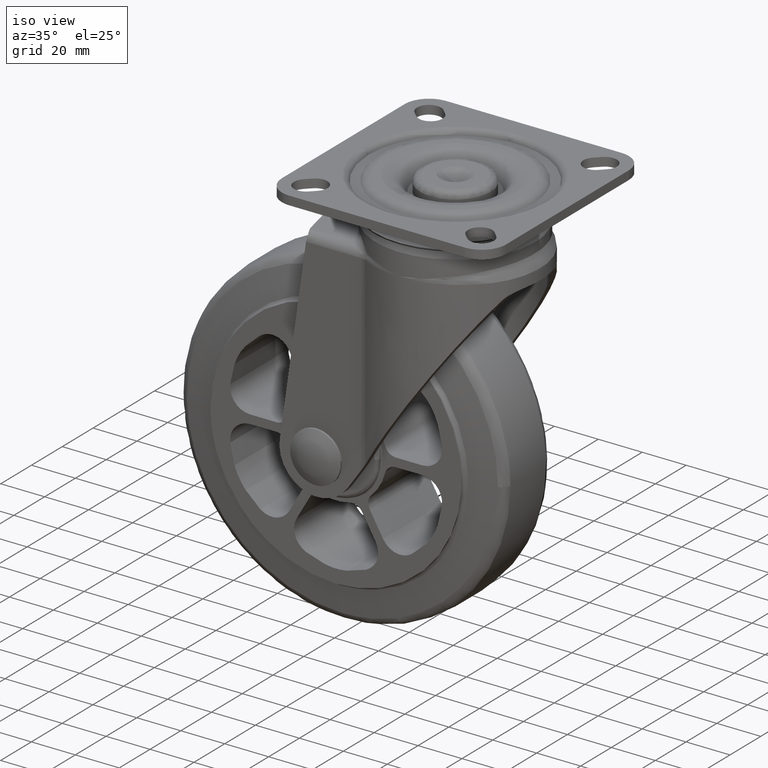
[diagram: clean part render]
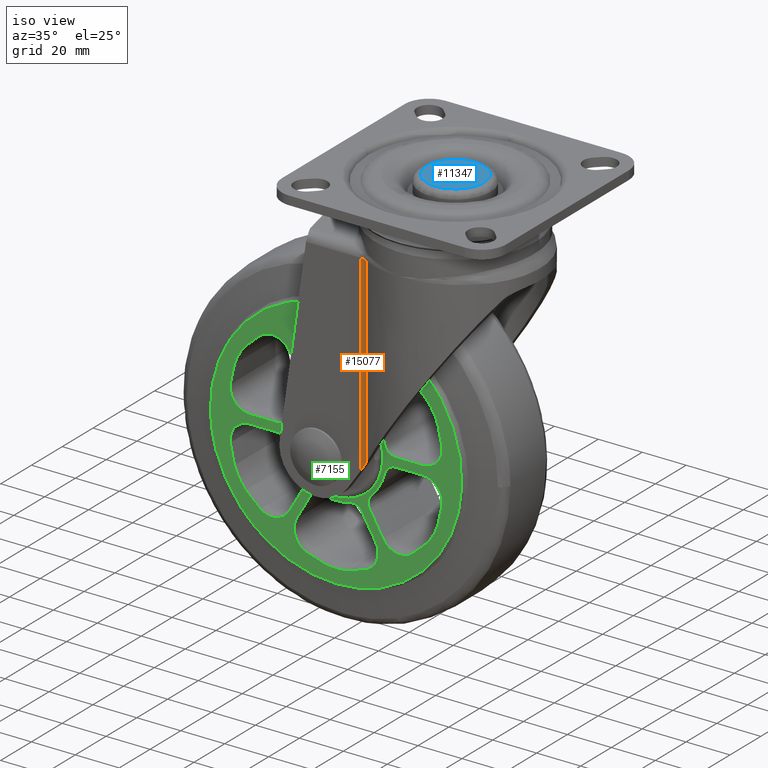
[diagram: same view with three faces highlighted in distinct colors, each labeled with its STEP entity id]
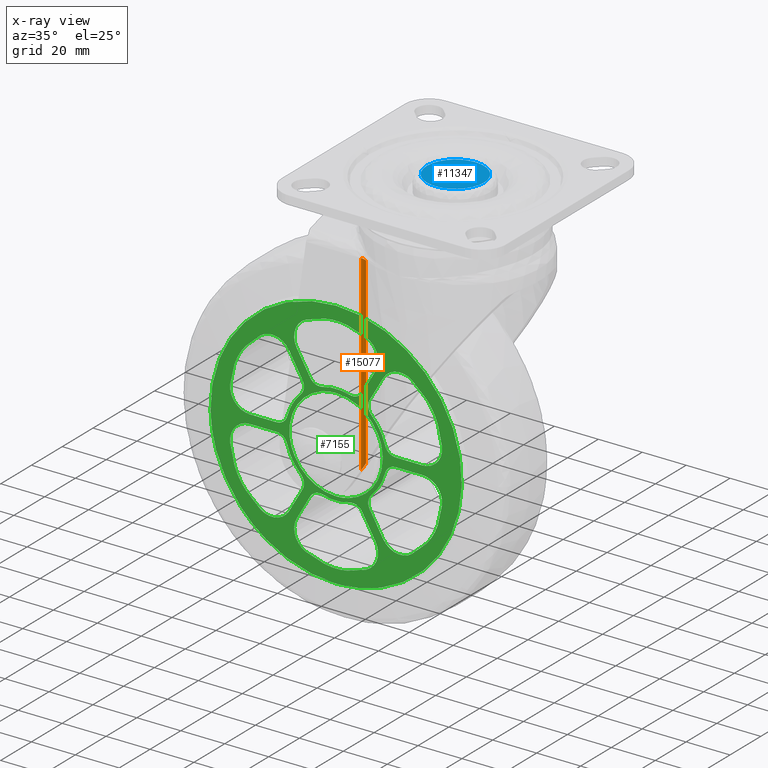
[diagram: x-ray of the same camera — body ghosted, the three highlighted faces saturated]
A machine part, iso view with three faces highlighted in distinct colors.
The next image is the same camera in x-ray (body ghosted, the three faces saturated) — at least one of them is partly hidden behind the body in this view.
Their STEP definitions:

[orange] entity #15077 — the highlighted face is a freeform B-spline surface patch.
#14984=CARTESIAN_POINT('',(19.713605374355399,-31.0,86.649990000000003));
#14985=VERTEX_POINT('',#14984);
#14986=CARTESIAN_POINT('',(22.456322328793949,-31.663568260734849,86.649990000000003));
#14987=VERTEX_POINT('',#14986);
#14988=CARTESIAN_POINT('',(19.713605374355449,-31.0,86.649990000000003));
#14989=CARTESIAN_POINT('',(21.165235138034305,-31.000000000000004,86.649990000000017));
#14990=CARTESIAN_POINT('',(22.456322328793920,-31.663568260734909,86.649990000000003));
#14998=(BOUNDED_CURVE()B_SPLINE_CURVE(2,(#14988,#14989,#14990),.UNSPECIFIED.,.F.,.U.)CURVE()GEOMETRIC_REPRESENTATION_ITEM()QUASI_UNIFORM_CURVE()RATIONAL_B_SPLINE_CURVE((1.0,0.971958149787714,1.0))REPRESENTATION_ITEM(''));
#14999=EDGE_CURVE('',#14985,#14987,#14998,.T.);
#15033=CARTESIAN_POINT('',(19.573208721414392,-31.001642826586355,-2.979178971556210));
#15034=CARTESIAN_POINT('',(19.573208721414392,-31.001642826586355,88.890719224288944));
#15035=CARTESIAN_POINT('',(21.174264037970183,-30.964168764752529,-2.979178971556210));
#15036=CARTESIAN_POINT('',(21.174264037970183,-30.964168764752529,88.890719224288929));
#15037=CARTESIAN_POINT('',(22.581034753741868,-31.729530499639377,-2.979178971556211));
#15038=CARTESIAN_POINT('',(22.581034753741868,-31.729530499639377,88.890719224288915));
#15046=(BOUNDED_SURFACE()B_SPLINE_SURFACE(1,2,((#15033,#15035,#15037),(#15034,#15036,#15038)),.UNSPECIFIED.,.F.,.F.,.U.)B_SPLINE_SURFACE_WITH_KNOTS((2,2),(3,3),(0.0,91.869898195845153),(0.0,3.147880167364262),.UNSPECIFIED.)GEOMETRIC_REPRESENTATION_ITEM()RATIONAL_B_SPLINE_SURFACE(((0.997575972224792,0.961414490353102,0.992575912511359),(0.997575972224792,0.961414490353102,0.992575912511359)))REPRESENTATION_ITEM('')SURFACE());
#15047=CARTESIAN_POINT('',(22.456322328793949,-31.663568260734849,3.177495566575165));
#15048=VERTEX_POINT('',#15047);
#15049=CARTESIAN_POINT('',(19.713605374355449,-31.0,-0.793101679567032));
#15050=VERTEX_POINT('',#15049);
#15051=CARTESIAN_POINT('',(22.456322328793949,-31.663568260734849,3.177495566575165));
#15052=CARTESIAN_POINT('',(21.165235065137743,-30.999999962534059,1.308404581701009));
#15053=CARTESIAN_POINT('',(19.713605374355449,-31.0,-0.793101679567032));
#15061=(BOUNDED_CURVE()B_SPLINE_CURVE(2,(#15051,#15052,#15053),.UNSPECIFIED.,.F.,.U.)CURVE()GEOMETRIC_REPRESENTATION_ITEM()QUASI_UNIFORM_CURVE()RATIONAL_B_SPLINE_CURVE((1.0,0.971958146753096,1.0))REPRESENTATION_ITEM(''));
#15062=EDGE_CURVE('',#15048,#15050,#15061,.T.);
#15063=ORIENTED_EDGE('',*,*,#15062,.F.);
#15064=CARTESIAN_POINT('',(22.456322328793949,-31.663568260734849,86.649990000000003));
#15065=CARTESIAN_POINT('',(22.456322328793949,-31.663568260734849,3.177495566575165));
#15066=QUASI_UNIFORM_CURVE('',1,(#15064,#15065),.UNSPECIFIED.,.F.,.U.);
#15067=EDGE_CURVE('',#14987,#15048,#15066,.T.);
#15068=ORIENTED_EDGE('',*,*,#15067,.F.);
#15069=ORIENTED_EDGE('',*,*,#14999,.F.);
#15070=CARTESIAN_POINT('',(19.713605374355449,-31.0,-0.793101679567032));
#15071=CARTESIAN_POINT('',(19.713605374355399,-31.0,86.649990000000003));
#15072=QUASI_UNIFORM_CURVE('',1,(#15070,#15071),.UNSPECIFIED.,.F.,.U.);
#15073=EDGE_CURVE('',#15050,#14985,#15072,.T.);
#15074=ORIENTED_EDGE('',*,*,#15073,.F.);
#15075=EDGE_LOOP('',(#15063,#15068,#15069,#15074));
#15076=FACE_OUTER_BOUND('',#15075,.T.);
#15077=ADVANCED_FACE('',(#15076),#15046,.F.);

[blue] entity #11347 — the highlighted face is a freeform B-spline surface patch.
#10978=CARTESIAN_POINT('',(41.906532274336449,-12.968353782850780,114.999977000000000));
#10979=VERTEX_POINT('',#10978);
#10993=CARTESIAN_POINT('',(28.0,0.0,114.999977000000000));
#10994=VERTEX_POINT('',#10993);
#10995=CARTESIAN_POINT('',(41.906532274336449,-12.968353782850775,114.999977000000000));
#10996=CARTESIAN_POINT('',(41.453818508621673,-13.0,114.999976999999990));
#10997=CARTESIAN_POINT('',(41.0,-13.0,114.999977000000000));
#10998=CARTESIAN_POINT('',(28.000000000000004,-13.0,114.999977000000000));
#10999=CARTESIAN_POINT('',(28.0,0.0,114.999977000000000));
#11007=(BOUNDED_CURVE()B_SPLINE_CURVE(2,(#10995,#10996,#10997,#10998,#10999),.UNSPECIFIED.,.F.,.U.)B_SPLINE_CURVE_WITH_KNOTS((3,2,3),(0.737833686475664,0.750000000000000,1.0),.UNSPECIFIED.)CURVE()GEOMETRIC_REPRESENTATION_ITEM()RATIONAL_B_SPLINE_CURVE((0.972879876261280,0.985746277083054,1.0,0.707106781186547,1.0))REPRESENTATION_ITEM(''));
#11008=EDGE_CURVE('',#10979,#10994,#11007,.T.);
#11010=CARTESIAN_POINT('',(53.998973587631738,0.163358519739961,114.999977000000000));
#11011=VERTEX_POINT('',#11010);
#11012=CARTESIAN_POINT('',(28.0,0.0,114.999977000000000));
#11013=CARTESIAN_POINT('',(28.000000000000004,13.0,114.999977000000000));
#11014=CARTESIAN_POINT('',(41.0,13.0,114.999977000000000));
#11015=CARTESIAN_POINT('',(53.837655086635934,13.000000000000002,114.999977000000000));
#11016=CARTESIAN_POINT('',(53.998973587631738,0.163358519739961,114.999976999999970));
#11024=(BOUNDED_CURVE()B_SPLINE_CURVE(2,(#11012,#11013,#11014,#11015,#11016),.UNSPECIFIED.,.F.,.U.)B_SPLINE_CURVE_WITH_KNOTS((3,2,3),(0.0,0.250000000000000,0.497784295892152),.UNSPECIFIED.)CURVE()GEOMETRIC_REPRESENTATION_ITEM()RATIONAL_B_SPLINE_CURVE((1.0,0.707106781186547,1.0,0.709702640018891,0.994854295575939))REPRESENTATION_ITEM(''));
#11025=EDGE_CURVE('',#10994,#11011,#11024,.T.);
#11066=CARTESIAN_POINT('',(54.0,0.0,114.999977000000000));
#11067=VERTEX_POINT('',#11066);
#11068=CARTESIAN_POINT('',(53.998973587631738,0.163358519739961,114.999977000000030));
#11069=CARTESIAN_POINT('',(54.0,0.081682484987758,114.999976999999990));
#11070=CARTESIAN_POINT('',(54.0,0.0,114.999977000000000));
#11078=(BOUNDED_CURVE()B_SPLINE_CURVE(2,(#11068,#11069,#11070),.UNSPECIFIED.,.F.,.U.)B_SPLINE_CURVE_WITH_KNOTS((3,3),(0.497784295892152,0.500000000000000),.UNSPECIFIED.)CURVE()GEOMETRIC_REPRESENTATION_ITEM()RATIONAL_B_SPLINE_CURVE((0.994854295575938,0.997404141167656,1.0))REPRESENTATION_ITEM(''));
#11079=EDGE_CURVE('',#11011,#11067,#11078,.T.);
#11081=CARTESIAN_POINT('',(54.0,0.0,114.999977000000000));
#11082=CARTESIAN_POINT('',(54.0,-12.122979010263741,114.999977000000000));
#11083=CARTESIAN_POINT('',(41.906532274336449,-12.968353782850775,114.999977000000000));
#11091=(BOUNDED_CURVE()B_SPLINE_CURVE(2,(#11081,#11082,#11083),.UNSPECIFIED.,.F.,.U.)B_SPLINE_CURVE_WITH_KNOTS((3,3),(0.500000000000000,0.737833686475664),.UNSPECIFIED.)CURVE()GEOMETRIC_REPRESENTATION_ITEM()RATIONAL_B_SPLINE_CURVE((1.0,0.721360504103494,0.972879876261280))REPRESENTATION_ITEM(''));
#11092=EDGE_CURVE('',#11067,#10979,#11091,.T.);
#11116=CARTESIAN_POINT('',(34.0,2.857415E-016,114.999977000000000));
#11117=VERTEX_POINT('',#11116);
#11118=CARTESIAN_POINT('',(48.000000000000007,-2.857415E-016,114.999977000000000));
#11119=VERTEX_POINT('',#11118);
#11120=CARTESIAN_POINT('',(34.0,0.0,114.999977000000000));
#11121=CARTESIAN_POINT('',(34.000000000000014,6.999999999999999,114.999977000000000));
#11122=CARTESIAN_POINT('',(41.0,7.0,114.999977000000000));
#11123=CARTESIAN_POINT('',(48.0,6.999999999999999,114.999977000000000));
#11124=CARTESIAN_POINT('',(48.0,0.0,114.999977000000000));
#11132=(BOUNDED_CURVE()B_SPLINE_CURVE(2,(#11120,#11121,#11122,#11123,#11124),.UNSPECIFIED.,.F.,.U.)B_SPLINE_CURVE_WITH_KNOTS((3,2,3),(0.0,0.500000000000000,1.0),.UNSPECIFIED.)CURVE()GEOMETRIC_REPRESENTATION_ITEM()RATIONAL_B_SPLINE_CURVE((1.0,0.707106781186547,1.0,0.707106781186547,1.0))REPRESENTATION_ITEM(''));
#11133=EDGE_CURVE('',#11117,#11119,#11132,.T.);
#11318=CARTESIAN_POINT('',(55.298699949606949,-14.297130134455490,114.999977000000000));
#11319=CARTESIAN_POINT('',(26.701299353018712,-14.297130134455490,114.999977000000000));
#11320=CARTESIAN_POINT('',(55.298699949606949,14.298358166325970,114.999977000000000));
#11321=CARTESIAN_POINT('',(26.701299353018712,14.298358166325970,114.999977000000000));
#11322=B_SPLINE_SURFACE_WITH_KNOTS('',1,1,((#11318,#11320),(#11319,#11321)),.UNSPECIFIED.,.F.,.F.,.U.,(2,2),(2,2),(0.0,28.597400596588241),(0.0,28.595488300781451),.UNSPECIFIED.);
#11323=ORIENTED_EDGE('',*,*,#11008,.F.);
#11324=ORIENTED_EDGE('',*,*,#11092,.F.);
#11325=ORIENTED_EDGE('',*,*,#11079,.F.);
#11326=ORIENTED_EDGE('',*,*,#11025,.F.);
#11327=EDGE_LOOP('',(#11323,#11324,#11325,#11326));
#11328=FACE_OUTER_BOUND('',#11327,.T.);
#11329=CARTESIAN_POINT('',(48.0,0.0,114.999977000000000));
#11330=CARTESIAN_POINT('',(48.0,-6.999999999999999,114.999977000000000));
#11331=CARTESIAN_POINT('',(41.0,-7.0,114.999977000000000));
#11332=CARTESIAN_POINT('',(34.000000000000014,-6.999999999999999,114.999977000000000));
#11333=CARTESIAN_POINT('',(34.0,0.0,114.999977000000000));
#11341=(BOUNDED_CURVE()B_SPLINE_CURVE(2,(#11329,#11330,#11331,#11332,#11333),.UNSPECIFIED.,.F.,.U.)B_SPLINE_CURVE_WITH_KNOTS((3,2,3),(0.0,0.500000000000000,1.0),.UNSPECIFIED.)CURVE()GEOMETRIC_REPRESENTATION_ITEM()RATIONAL_B_SPLINE_CURVE((1.0,0.707106781186547,1.0,0.707106781186547,1.0))REPRESENTATION_ITEM(''));
#11342=EDGE_CURVE('',#11119,#11117,#11341,.T.);
#11343=ORIENTED_EDGE('',*,*,#11342,.T.);
#11344=ORIENTED_EDGE('',*,*,#11133,.T.);
#11345=EDGE_LOOP('',(#11343,#11344));
#11346=FACE_BOUND('',#11345,.T.);
#11347=ADVANCED_FACE('',(#11328,#11346),#11322,.F.);

[green] entity #7155 — the highlighted face is a freeform B-spline surface patch.
#275=CARTESIAN_POINT('',(-57.187640422987563,-19.0,-1.189074115000192));
#276=VERTEX_POINT('',#275);
#282=CARTESIAN_POINT('',(-5.684342E-014,-19.0,57.200000999999887));
#283=VERTEX_POINT('',#282);
#284=CARTESIAN_POINT('',(-57.187640422987563,-19.000000000000004,-1.189074115000192));
#285=CARTESIAN_POINT('',(-57.200000999999951,-19.000000000000004,-0.594601302386996));
#286=CARTESIAN_POINT('',(-57.200000999999951,-19.0,0.0));
#287=CARTESIAN_POINT('',(-57.200000999999951,-18.999999999999993,57.200000999999901));
#288=CARTESIAN_POINT('',(-5.684342E-014,-19.0,57.200000999999887));
#296=(BOUNDED_CURVE()B_SPLINE_CURVE(2,(#284,#285,#286,#287,#288),.UNSPECIFIED.,.F.,.U.)B_SPLINE_CURVE_WITH_KNOTS((3,2,3),(0.746340524413133,0.750000000000000,1.0),.UNSPECIFIED.)CURVE()GEOMETRIC_REPRESENTATION_ITEM()RATIONAL_B_SPLINE_CURVE((0.991550830726413,0.995712657664774,1.0,0.707106781186548,1.0))REPRESENTATION_ITEM(''));
#297=EDGE_CURVE('',#276,#283,#296,.T.);
#299=CARTESIAN_POINT('',(-5.684342E-014,-19.0,-57.200000999999887));
#300=VERTEX_POINT('',#299);
#301=CARTESIAN_POINT('',(-5.684342E-014,-19.0,57.200000999999887));
#302=CARTESIAN_POINT('',(57.200000999999858,-18.999999999999993,57.200000999999901));
#303=CARTESIAN_POINT('',(57.200000999999837,-19.0,0.0));
#304=CARTESIAN_POINT('',(57.200000999999858,-18.999999999999993,-57.200000999999901));
#305=CARTESIAN_POINT('',(-5.684342E-014,-19.0,-57.200000999999887));
#313=(BOUNDED_CURVE()B_SPLINE_CURVE(2,(#301,#302,#303,#304,#305),.UNSPECIFIED.,.F.,.U.)B_SPLINE_CURVE_WITH_KNOTS((3,2,3),(0.0,0.250000000000000,0.500000000000000),.UNSPECIFIED.)CURVE()GEOMETRIC_REPRESENTATION_ITEM()RATIONAL_B_SPLINE_CURVE((1.0,0.707106781186548,1.0,0.707106781186548,1.0))REPRESENTATION_ITEM(''));
#314=EDGE_CURVE('',#283,#300,#313,.T.);
#316=CARTESIAN_POINT('',(-43.495223637795547,-19.0,-37.148427087807349));
#317=VERTEX_POINT('',#316);
#318=CARTESIAN_POINT('',(-5.684342E-014,-19.0,-57.200000999999887));
#319=CARTESIAN_POINT('',(-26.369563181929109,-18.999999999999996,-57.200000999999901));
#320=CARTESIAN_POINT('',(-43.495223637795604,-18.999999999999996,-37.148427087807391));
#328=(BOUNDED_CURVE()B_SPLINE_CURVE(2,(#318,#319,#320),.UNSPECIFIED.,.F.,.U.)B_SPLINE_CURVE_WITH_KNOTS((3,3),(0.500000000000000,0.636856845342827),.UNSPECIFIED.)CURVE()GEOMETRIC_REPRESENTATION_ITEM()RATIONAL_B_SPLINE_CURVE((1.0,0.839662232203538,0.854871033126552))REPRESENTATION_ITEM(''));
#329=EDGE_CURVE('',#300,#317,#328,.T.);
#429=CARTESIAN_POINT('',(-43.495223637795597,-18.999999999999996,-37.148427087807370));
#430=CARTESIAN_POINT('',(-56.762957074824079,-19.000000000000004,-21.613905756765142));
#431=CARTESIAN_POINT('',(-57.187640422987563,-19.000000000000004,-1.189074115000192));
#439=(BOUNDED_CURVE()B_SPLINE_CURVE(2,(#429,#430,#431),.UNSPECIFIED.,.F.,.U.)B_SPLINE_CURVE_WITH_KNOTS((3,3),(0.636856845342827,0.746340524413133),.UNSPECIFIED.)CURVE()GEOMETRIC_REPRESENTATION_ITEM()RATIONAL_B_SPLINE_CURVE((0.854871033126552,0.867037874143005,0.991550830726413))REPRESENTATION_ITEM(''));
#440=EDGE_CURVE('',#317,#276,#439,.T.);
#3720=CARTESIAN_POINT('',(21.249999987765690,-19.0,8.874474E-016));
#3721=VERTEX_POINT('',#3720);
#3735=CARTESIAN_POINT('',(-5.684342E-014,-19.0,21.250000000000000));
#3736=VERTEX_POINT('',#3735);
#3737=CARTESIAN_POINT('',(-5.684342E-014,-19.0,21.250000000000000));
#3738=CARTESIAN_POINT('',(21.249999999999957,-19.0,21.250000000000000));
#3739=CARTESIAN_POINT('',(21.249999987765690,-19.0,8.874474E-016));
#3747=(BOUNDED_CURVE()B_SPLINE_CURVE(2,(#3737,#3738,#3739),.UNSPECIFIED.,.F.,.U.)B_SPLINE_CURVE_WITH_KNOTS((3,3),(0.0,0.250000000000000),.UNSPECIFIED.)CURVE()GEOMETRIC_REPRESENTATION_ITEM()RATIONAL_B_SPLINE_CURVE((1.0,0.707106781186547,1.0))REPRESENTATION_ITEM(''));
#3748=EDGE_CURVE('',#3736,#3721,#3747,.T.);
#3750=CARTESIAN_POINT('',(-21.107872323624690,-19.0,-2.453614873224992));
#3751=VERTEX_POINT('',#3750);
#3752=CARTESIAN_POINT('',(-21.107872323624690,-18.999999999999996,-2.453614873224992));
#3753=CARTESIAN_POINT('',(-21.250000000000060,-19.000000000000004,-1.230923868419162));
#3754=CARTESIAN_POINT('',(-21.250000000000060,-19.0,0.0));
#3755=CARTESIAN_POINT('',(-21.250000000000064,-18.999999999999996,21.249999999999996));
#3756=CARTESIAN_POINT('',(-5.684342E-014,-19.0,21.250000000000000));
#3764=(BOUNDED_CURVE()B_SPLINE_CURVE(2,(#3752,#3753,#3754,#3755,#3756),.UNSPECIFIED.,.F.,.U.)B_SPLINE_CURVE_WITH_KNOTS((3,2,3),(0.729999999998583,0.750000000000000,1.0),.UNSPECIFIED.)CURVE()GEOMETRIC_REPRESENTATION_ITEM()RATIONAL_B_SPLINE_CURVE((0.956886118187872,0.976568542493264,1.0,0.707106781186547,1.0))REPRESENTATION_ITEM(''));
#3765=EDGE_CURVE('',#3751,#3736,#3764,.T.);
#3809=CARTESIAN_POINT('',(-5.684342E-014,-19.0,-21.250000000000000));
#3810=VERTEX_POINT('',#3809);
#3811=CARTESIAN_POINT('',(-5.684342E-014,-19.0,-21.250000000000000));
#3812=CARTESIAN_POINT('',(-18.922948642412972,-19.000000000000011,-21.249999999999996));
#3813=CARTESIAN_POINT('',(-21.107872323624690,-18.999999999999993,-2.453614873224992));
#3821=(BOUNDED_CURVE()B_SPLINE_CURVE(2,(#3811,#3812,#3813),.UNSPECIFIED.,.F.,.U.)B_SPLINE_CURVE_WITH_KNOTS((3,3),(0.500000000000000,0.729999999998582),.UNSPECIFIED.)CURVE()GEOMETRIC_REPRESENTATION_ITEM()RATIONAL_B_SPLINE_CURVE((1.0,0.730538238693284,0.956886118187870))REPRESENTATION_ITEM(''));
#3822=EDGE_CURVE('',#3810,#3751,#3821,.T.);
#3824=CARTESIAN_POINT('',(21.249999987765690,-19.0,8.874474E-016));
#3825=CARTESIAN_POINT('',(21.249999999999954,-18.999999999999996,-21.249999999999996));
#3826=CARTESIAN_POINT('',(-5.684342E-014,-19.0,-21.250000000000000));
#3834=(BOUNDED_CURVE()B_SPLINE_CURVE(2,(#3824,#3825,#3826),.UNSPECIFIED.,.F.,.U.)B_SPLINE_CURVE_WITH_KNOTS((3,3),(0.250000000000000,0.500000000000000),.UNSPECIFIED.)CURVE()GEOMETRIC_REPRESENTATION_ITEM()RATIONAL_B_SPLINE_CURVE((1.0,0.707106781186547,1.0))REPRESENTATION_ITEM(''));
#3835=EDGE_CURVE('',#3721,#3810,#3834,.T.);
#3981=CARTESIAN_POINT('',(17.899223999999951,-19.0,-35.002364999999998));
#3982=VERTEX_POINT('',#3981);
#3983=CARTESIAN_POINT('',(11.823390999999839,-19.0,-24.478713999999950));
#3984=VERTEX_POINT('',#3983);
#3985=CARTESIAN_POINT('',(17.899223999999951,-19.0,-35.002364999999998));
#3986=CARTESIAN_POINT('',(11.823390999999839,-19.0,-24.478713999999950));
#3987=QUASI_UNIFORM_CURVE('',1,(#3985,#3986),.UNSPECIFIED.,.F.,.U.);
#3988=EDGE_CURVE('',#3982,#3984,#3987,.T.);
#4026=CARTESIAN_POINT('',(13.657793935238759,-19.0,-47.771442161164700));
#4027=VERTEX_POINT('',#4026);
#4028=CARTESIAN_POINT('',(13.657793935238759,-19.0,-47.771442161164700));
#4029=CARTESIAN_POINT('',(17.371864342187912,-19.000000000000004,-46.175695282063423));
#4030=CARTESIAN_POINT('',(18.646135628525730,-19.0,-42.339426290093371));
#4031=CARTESIAN_POINT('',(19.920406914863548,-19.000000000000004,-38.503157298123320));
#4032=CARTESIAN_POINT('',(17.899223999999951,-19.0,-35.002364999999998));
#4040=(BOUNDED_CURVE()B_SPLINE_CURVE(2,(#4028,#4029,#4030,#4031,#4032),.UNSPECIFIED.,.F.,.U.)B_SPLINE_CURVE_WITH_KNOTS((3,2,3),(0.0,0.500000000000000,1.0),.UNSPECIFIED.)CURVE()GEOMETRIC_REPRESENTATION_ITEM()RATIONAL_B_SPLINE_CURVE((1.0,0.912210814246931,1.0,0.912210814246931,1.0))REPRESENTATION_ITEM(''));
#4041=EDGE_CURVE('',#4027,#3982,#4040,.T.);
#4083=CARTESIAN_POINT('',(5.132746262914740,-19.0,-50.467425606314492));
#4084=VERTEX_POINT('',#4083);
#4085=CARTESIAN_POINT('',(5.132746262914740,-19.0,-50.467425606314492));
#4086=CARTESIAN_POINT('',(9.529854211617044,-18.999999999999996,-49.545006220768514));
#4087=CARTESIAN_POINT('',(13.657793935238731,-19.0,-47.771442161164657));
#4095=(BOUNDED_CURVE()B_SPLINE_CURVE(2,(#4085,#4086,#4087),.UNSPECIFIED.,.F.,.U.)CURVE()GEOMETRIC_REPRESENTATION_ITEM()QUASI_UNIFORM_CURVE()RATIONAL_B_SPLINE_CURVE((1.0,0.995052901044291,1.0))REPRESENTATION_ITEM(''));
#4096=EDGE_CURVE('',#4084,#4027,#4095,.T.);
#4136=CARTESIAN_POINT('',(-5.132746273246700,-19.0,-50.467426091366107));
#4137=VERTEX_POINT('',#4136);
#4138=CARTESIAN_POINT('',(-5.132746273246700,-19.0,-50.467426091366107));
#4139=CARTESIAN_POINT('',(0.000000045710774,-18.999999999999993,-51.544166755495489));
#4140=CARTESIAN_POINT('',(5.132746262914729,-19.0,-50.467425606314492));
#4148=(BOUNDED_CURVE()B_SPLINE_CURVE(2,(#4138,#4139,#4140),.UNSPECIFIED.,.F.,.U.)CURVE()GEOMETRIC_REPRESENTATION_ITEM()QUASI_UNIFORM_CURVE()RATIONAL_B_SPLINE_CURVE((1.0,0.978697024619978,1.0))REPRESENTATION_ITEM(''));
#4149=EDGE_CURVE('',#4137,#4084,#4148,.T.);
#4189=CARTESIAN_POINT('',(-13.657793187047821,-19.0,-47.771441432232898));
#4190=VERTEX_POINT('',#4189);
#4191=CARTESIAN_POINT('',(-13.657793187047821,-19.0,-47.771441432232898));
#4192=CARTESIAN_POINT('',(-9.529853972572274,-19.0,-49.545006280042628));
#4193=CARTESIAN_POINT('',(-5.132746273246696,-19.0,-50.467426091366093));
#4201=(BOUNDED_CURVE()B_SPLINE_CURVE(2,(#4191,#4192,#4193),.UNSPECIFIED.,.F.,.U.)CURVE()GEOMETRIC_REPRESENTATION_ITEM()QUASI_UNIFORM_CURVE()RATIONAL_B_SPLINE_CURVE((1.0,0.995052901386710,1.0))REPRESENTATION_ITEM(''));
#4202=EDGE_CURVE('',#4190,#4137,#4201,.T.);
#4242=CARTESIAN_POINT('',(-17.899224000000050,-19.0,-35.002364999999998));
#4243=VERTEX_POINT('',#4242);
#4244=CARTESIAN_POINT('',(-17.899224000000050,-19.0,-35.002364999999998));
#4245=CARTESIAN_POINT('',(-19.920406974902097,-19.0,-38.503157402113033));
#4246=CARTESIAN_POINT('',(-18.646135565530759,-19.0,-42.339426479743643));
#4247=CARTESIAN_POINT('',(-17.371864156159429,-19.0,-46.175695557374254));
#4248=CARTESIAN_POINT('',(-13.657793187047830,-19.0,-47.771441432232912));
#4256=(BOUNDED_CURVE()B_SPLINE_CURVE(2,(#4244,#4245,#4246,#4247,#4248),.UNSPECIFIED.,.F.,.U.)B_SPLINE_CURVE_WITH_KNOTS((3,2,3),(0.0,0.500000000000000,1.0),.UNSPECIFIED.)CURVE()GEOMETRIC_REPRESENTATION_ITEM()RATIONAL_B_SPLINE_CURVE((1.0,0.912210809698140,1.0,0.912210809698140,1.0))REPRESENTATION_ITEM(''));
#4257=EDGE_CURVE('',#4243,#4190,#4256,.T.);
#4290=CARTESIAN_POINT('',(-11.823391018922260,-19.0,-24.478713999999950));
#4291=VERTEX_POINT('',#4290);
#4292=CARTESIAN_POINT('',(-11.823391018922260,-19.0,-24.478713999999950));
#4293=CARTESIAN_POINT('',(-17.899224000000050,-19.0,-35.002364999999998));
#4294=QUASI_UNIFORM_CURVE('',1,(#4292,#4293),.UNSPECIFIED.,.F.,.U.);
#4295=EDGE_CURVE('',#4291,#4243,#4294,.T.);
#4327=CARTESIAN_POINT('',(-6.155181120500540,-19.0,-22.161086285961598));
#4328=VERTEX_POINT('',#4327);
#4329=CARTESIAN_POINT('',(-6.155181120500540,-19.0,-22.161086285961598));
#4330=CARTESIAN_POINT('',(-9.886899356731695,-19.000000000000004,-21.124612052652441));
#4331=CARTESIAN_POINT('',(-11.823391018922210,-19.0,-24.478713999999979));
#4339=(BOUNDED_CURVE()B_SPLINE_CURVE(2,(#4329,#4330,#4331),.UNSPECIFIED.,.F.,.U.)CURVE()GEOMETRIC_REPRESENTATION_ITEM()QUASI_UNIFORM_CURVE()RATIONAL_B_SPLINE_CURVE((1.0,0.790569416712826,1.0))REPRESENTATION_ITEM(''));
#4340=EDGE_CURVE('',#4328,#4291,#4339,.T.);
#4380=CARTESIAN_POINT('',(6.155181120500370,-19.0,-22.161086285961598));
#4381=VERTEX_POINT('',#4380);
#4382=CARTESIAN_POINT('',(-6.155181120500534,-19.0,-22.161086285961581));
#4383=CARTESIAN_POINT('',(-8.199691E-014,-18.999999999999996,-23.870671011966873));
#4384=CARTESIAN_POINT('',(6.155181120500365,-19.0,-22.161086285961598));
#4392=(BOUNDED_CURVE()B_SPLINE_CURVE(2,(#4382,#4383,#4384),.UNSPECIFIED.,.F.,.U.)CURVE()GEOMETRIC_REPRESENTATION_ITEM()QUASI_UNIFORM_CURVE()RATIONAL_B_SPLINE_CURVE((1.0,0.963525490693982,1.0))REPRESENTATION_ITEM(''));
#4393=EDGE_CURVE('',#4328,#4381,#4392,.T.);
#4433=CARTESIAN_POINT('',(11.823390999999839,-19.0,-24.478713999999950));
#4434=CARTESIAN_POINT('',(9.886899349438737,-19.000000000000004,-21.124612054677918));
#4435=CARTESIAN_POINT('',(6.155181120500370,-19.0,-22.161086285961598));
#4443=(BOUNDED_CURVE()B_SPLINE_CURVE(2,(#4433,#4434,#4435),.UNSPECIFIED.,.F.,.U.)CURVE()GEOMETRIC_REPRESENTATION_ITEM()QUASI_UNIFORM_CURVE()RATIONAL_B_SPLINE_CURVE((1.0,0.790569417292195,1.0))REPRESENTATION_ITEM(''));
#4444=EDGE_CURVE('',#3984,#4381,#4443,.T.);
#4478=CARTESIAN_POINT('',(6.155181147717260,-19.0,22.161086546530051));
#4479=VERTEX_POINT('',#4478);
#4480=CARTESIAN_POINT('',(11.823391018922139,-19.0,24.478713999999950));
#4481=VERTEX_POINT('',#4480);
#4482=CARTESIAN_POINT('',(6.155181147717260,-19.0,22.161086546530051));
#4483=CARTESIAN_POINT('',(9.886899339328281,-19.000000000000004,21.124612022508934));
#4484=CARTESIAN_POINT('',(11.823391018922180,-19.0,24.478713999999929));
#4492=(BOUNDED_CURVE()B_SPLINE_CURVE(2,(#4482,#4483,#4484),.UNSPECIFIED.,.F.,.U.)CURVE()GEOMETRIC_REPRESENTATION_ITEM()QUASI_UNIFORM_CURVE()RATIONAL_B_SPLINE_CURVE((1.0,0.790569414048493,1.0))REPRESENTATION_ITEM(''));
#4493=EDGE_CURVE('',#4479,#4481,#4492,.T.);
#4530=CARTESIAN_POINT('',(17.899223999999951,-19.0,35.002364999999998));
#4531=VERTEX_POINT('',#4530);
#4532=CARTESIAN_POINT('',(11.823391018922139,-19.0,24.478713999999950));
#4533=CARTESIAN_POINT('',(17.899223999999951,-19.0,35.002364999999998));
#4534=QUASI_UNIFORM_CURVE('',1,(#4532,#4533),.UNSPECIFIED.,.F.,.U.);
#4535=EDGE_CURVE('',#4481,#4531,#4534,.T.);
#4567=CARTESIAN_POINT('',(13.657793187047741,-19.0,47.771441432232898));
#4568=VERTEX_POINT('',#4567);
#4569=CARTESIAN_POINT('',(17.899223999999951,-19.0,35.002364999999998));
#4570=CARTESIAN_POINT('',(19.920406974902029,-18.999999999999996,38.503157402113004));
#4571=CARTESIAN_POINT('',(18.646135565530699,-19.0,42.339426479743643));
#4572=CARTESIAN_POINT('',(17.371864156159369,-18.999999999999996,46.175695557374262));
#4573=CARTESIAN_POINT('',(13.657793187047750,-19.0,47.771441432232912));
#4581=(BOUNDED_CURVE()B_SPLINE_CURVE(2,(#4569,#4570,#4571,#4572,#4573),.UNSPECIFIED.,.F.,.U.)B_SPLINE_CURVE_WITH_KNOTS((3,2,3),(0.0,0.500000000000000,1.0),.UNSPECIFIED.)CURVE()GEOMETRIC_REPRESENTATION_ITEM()RATIONAL_B_SPLINE_CURVE((1.0,0.912210809698140,1.0,0.912210809698140,1.0))REPRESENTATION_ITEM(''));
#4582=EDGE_CURVE('',#4531,#4568,#4581,.T.);
#4624=CARTESIAN_POINT('',(5.132746273246580,-19.0,50.467426091366107));
#4625=VERTEX_POINT('',#4624);
#4626=CARTESIAN_POINT('',(13.657793187047741,-19.0,47.771441432232898));
#4627=CARTESIAN_POINT('',(9.529853972572221,-18.999999999999996,49.545006280042607));
#4628=CARTESIAN_POINT('',(5.132746273246585,-19.0,50.467426091366079));
#4636=(BOUNDED_CURVE()B_SPLINE_CURVE(2,(#4626,#4627,#4628),.UNSPECIFIED.,.F.,.U.)CURVE()GEOMETRIC_REPRESENTATION_ITEM()QUASI_UNIFORM_CURVE()RATIONAL_B_SPLINE_CURVE((1.0,0.995052901386710,1.0))REPRESENTATION_ITEM(''));
#4637=EDGE_CURVE('',#4568,#4625,#4636,.T.);
#4677=CARTESIAN_POINT('',(-5.132746262914861,-19.0,50.467425606314492));
#4678=VERTEX_POINT('',#4677);
#4679=CARTESIAN_POINT('',(5.132746273246580,-19.0,50.467426091366107));
#4680=CARTESIAN_POINT('',(-0.000000045710896,-19.000000000000004,51.544166755495482));
#4681=CARTESIAN_POINT('',(-5.132746262914852,-19.0,50.467425606314492));
#4689=(BOUNDED_CURVE()B_SPLINE_CURVE(2,(#4679,#4680,#4681),.UNSPECIFIED.,.F.,.U.)CURVE()GEOMETRIC_REPRESENTATION_ITEM()QUASI_UNIFORM_CURVE()RATIONAL_B_SPLINE_CURVE((1.0,0.978697024619978,1.0))REPRESENTATION_ITEM(''));
#4690=EDGE_CURVE('',#4625,#4678,#4689,.T.);
#4730=CARTESIAN_POINT('',(-13.657793935238960,-19.0,47.771442161164600));
#4731=VERTEX_POINT('',#4730);
#4732=CARTESIAN_POINT('',(-5.132746262914861,-19.0,50.467425606314492));
#4733=CARTESIAN_POINT('',(-9.529854211617252,-19.000000000000004,49.545006220768492));
#4734=CARTESIAN_POINT('',(-13.657793935238971,-19.0,47.771442161164622));
#4742=(BOUNDED_CURVE()B_SPLINE_CURVE(2,(#4732,#4733,#4734),.UNSPECIFIED.,.F.,.U.)CURVE()GEOMETRIC_REPRESENTATION_ITEM()QUASI_UNIFORM_CURVE()RATIONAL_B_SPLINE_CURVE((1.0,0.995052901044291,1.0))REPRESENTATION_ITEM(''));
#4743=EDGE_CURVE('',#4678,#4731,#4742,.T.);
#4783=CARTESIAN_POINT('',(-17.899223634060000,-19.0,35.002364999999998));
#4784=VERTEX_POINT('',#4783);
#4785=CARTESIAN_POINT('',(-13.657793935238960,-19.0,47.771442161164600));
#4786=CARTESIAN_POINT('',(-17.371864392694171,-19.000000000000007,46.175695260363419));
#4787=CARTESIAN_POINT('',(-18.646135657364550,-19.0,42.339426203272602));
#4788=CARTESIAN_POINT('',(-19.920406922034932,-19.000000000000007,38.503157146181778));
#4789=CARTESIAN_POINT('',(-17.899223634059979,-19.0,35.002365000000012));
#4797=(BOUNDED_CURVE()B_SPLINE_CURVE(2,(#4785,#4786,#4787,#4788,#4789),.UNSPECIFIED.,.F.,.U.)B_SPLINE_CURVE_WITH_KNOTS((3,2,3),(0.0,0.500000000000000,1.0),.UNSPECIFIED.)CURVE()GEOMETRIC_REPRESENTATION_ITEM()RATIONAL_B_SPLINE_CURVE((1.0,0.912210812164525,1.0,0.912210812164525,1.0))REPRESENTATION_ITEM(''));
#4798=EDGE_CURVE('',#4731,#4784,#4797,.T.);
#4831=CARTESIAN_POINT('',(-11.823391000000059,-19.0,24.478713999999950));
#4832=VERTEX_POINT('',#4831);
#4833=CARTESIAN_POINT('',(-17.899223634060000,-19.0,35.002364999999998));
#4834=CARTESIAN_POINT('',(-11.823391000000059,-19.0,24.478713999999950));
#4835=QUASI_UNIFORM_CURVE('',1,(#4833,#4834),.UNSPECIFIED.,.F.,.U.);
#4836=EDGE_CURVE('',#4784,#4832,#4835,.T.);
#4868=CARTESIAN_POINT('',(-6.155181147717371,-19.0,22.161086546530051));
#4869=VERTEX_POINT('',#4868);
#4870=CARTESIAN_POINT('',(-11.823391000000059,-19.0,24.478713999999950));
#4871=CARTESIAN_POINT('',(-9.886899332035560,-19.000000000000004,21.124612024534546));
#4872=CARTESIAN_POINT('',(-6.155181147717362,-19.0,22.161086546530019));
#4880=(BOUNDED_CURVE()B_SPLINE_CURVE(2,(#4870,#4871,#4872),.UNSPECIFIED.,.F.,.U.)CURVE()GEOMETRIC_REPRESENTATION_ITEM()QUASI_UNIFORM_CURVE()RATIONAL_B_SPLINE_CURVE((1.0,0.790569414627868,1.0))REPRESENTATION_ITEM(''));
#4881=EDGE_CURVE('',#4832,#4869,#4880,.T.);
#4921=CARTESIAN_POINT('',(6.155181147717260,-19.0,22.161086546530051));
#4922=CARTESIAN_POINT('',(-4.470035E-014,-19.0,23.870670999425109));
#4923=CARTESIAN_POINT('',(-6.155181147717371,-19.0,22.161086546530051));
#4931=(BOUNDED_CURVE()B_SPLINE_CURVE(2,(#4921,#4922,#4923),.UNSPECIFIED.,.F.,.U.)CURVE()GEOMETRIC_REPRESENTATION_ITEM()QUASI_UNIFORM_CURVE()RATIONAL_B_SPLINE_CURVE((1.0,0.963525491200223,1.0))REPRESENTATION_ITEM(''));
#4932=EDGE_CURVE('',#4479,#4869,#4931,.T.);
#4957=CARTESIAN_POINT('',(-27.110883000000051,-19.0,2.0));
#4958=VERTEX_POINT('',#4957);
#4959=CARTESIAN_POINT('',(-39.262549999999997,-19.0,2.0));
#4960=VERTEX_POINT('',#4959);
#4961=CARTESIAN_POINT('',(-27.110883000000051,-19.0,2.0));
#4962=CARTESIAN_POINT('',(-39.262549999999997,-19.0,2.0));
#4963=QUASI_UNIFORM_CURVE('',1,(#4961,#4962),.UNSPECIFIED.,.F.,.U.);
#4964=EDGE_CURVE('',#4958,#4960,#4963,.T.);
#5002=CARTESIAN_POINT('',(-48.200179349672801,-19.0,12.057724731613860));
#5003=VERTEX_POINT('',#5002);
#5004=CARTESIAN_POINT('',(-48.200179349672787,-19.0,12.057724731613860));
#5005=CARTESIAN_POINT('',(-48.675258375077227,-19.0,8.043371928886032));
#5006=CARTESIAN_POINT('',(-45.990087535552092,-19.0,5.021685964443016));
#5007=CARTESIAN_POINT('',(-43.304916696026979,-19.0,2.000000000000000));
#5008=CARTESIAN_POINT('',(-39.262549999999997,-19.0,2.0));
#5016=(BOUNDED_CURVE()B_SPLINE_CURVE(2,(#5004,#5005,#5006,#5007,#5008),.UNSPECIFIED.,.F.,.U.)B_SPLINE_CURVE_WITH_KNOTS((3,2,3),(0.0,0.500000000000000,1.0),.UNSPECIFIED.)CURVE()GEOMETRIC_REPRESENTATION_ITEM()RATIONAL_B_SPLINE_CURVE((1.0,0.912210807615731,1.0,0.912210807615731,1.0))REPRESENTATION_ITEM(''));
#5017=EDGE_CURVE('',#5003,#4960,#5016,.T.);
#5059=CARTESIAN_POINT('',(-46.272445489117203,-19.0,20.788624466927150));
#5060=VERTEX_POINT('',#5059);
#5061=CARTESIAN_POINT('',(-46.272445489117189,-19.0,20.788624466927139));
#5062=CARTESIAN_POINT('',(-47.672160411726722,-19.000000000000004,16.519407399823095));
#5063=CARTESIAN_POINT('',(-48.200179349672801,-19.0,12.057724731613860));
#5071=(BOUNDED_CURVE()B_SPLINE_CURVE(2,(#5061,#5062,#5063),.UNSPECIFIED.,.F.,.U.)CURVE()GEOMETRIC_REPRESENTATION_ITEM()QUASI_UNIFORM_CURVE()RATIONAL_B_SPLINE_CURVE((1.0,0.995052900948139,1.0))REPRESENTATION_ITEM(''));
#5072=EDGE_CURVE('',#5060,#5003,#5071,.T.);
#5112=CARTESIAN_POINT('',(-41.139700008817101,-19.0,29.678801458020850));
#5113=VERTEX_POINT('',#5112);
#5114=CARTESIAN_POINT('',(-41.139700008817101,-19.0,29.678801458020850));
#5115=CARTESIAN_POINT('',(-44.638558146714580,-18.999999999999996,25.772083595086727));
#5116=CARTESIAN_POINT('',(-46.272445489117203,-19.0,20.788624466927150));
#5124=(BOUNDED_CURVE()B_SPLINE_CURVE(2,(#5114,#5115,#5116),.UNSPECIFIED.,.F.,.U.)CURVE()GEOMETRIC_REPRESENTATION_ITEM()QUASI_UNIFORM_CURVE()RATIONAL_B_SPLINE_CURVE((1.0,0.978697026497010,1.0))REPRESENTATION_ITEM(''));
#5125=EDGE_CURVE('',#5113,#5060,#5124,.T.);
#5165=CARTESIAN_POINT('',(-34.542386076884803,-19.0,35.713716559426153));
#5166=VERTEX_POINT('',#5165);
#5167=CARTESIAN_POINT('',(-34.542386076884767,-19.0,35.713716559426132));
#5168=CARTESIAN_POINT('',(-38.142307037573204,-18.999999999999996,33.025598049318809));
#5169=CARTESIAN_POINT('',(-41.139700008817101,-19.0,29.678801458020850));
#5177=(BOUNDED_CURVE()B_SPLINE_CURVE(2,(#5167,#5168,#5169),.UNSPECIFIED.,.F.,.U.)CURVE()GEOMETRIC_REPRESENTATION_ITEM()QUASI_UNIFORM_CURVE()RATIONAL_B_SPLINE_CURVE((1.0,0.995052901965735,1.0))REPRESENTATION_ITEM(''));
#5178=EDGE_CURVE('',#5166,#5113,#5177,.T.);
#5218=CARTESIAN_POINT('',(-21.363326432272849,-19.0,33.002365748718347));
#5219=VERTEX_POINT('',#5218);
#5220=CARTESIAN_POINT('',(-21.363326432272849,-19.0,33.002365748718347));
#5221=CARTESIAN_POINT('',(-23.384510020983026,-18.999999999999996,36.503157688477245));
#5222=CARTESIAN_POINT('',(-27.343952153696709,-19.0,37.317740589380413));
#5223=CARTESIAN_POINT('',(-31.303394286410391,-18.999999999999996,38.132323490283582));
#5224=CARTESIAN_POINT('',(-34.542386076884803,-19.0,35.713716559426153));
#5232=(BOUNDED_CURVE()B_SPLINE_CURVE(2,(#5220,#5221,#5222,#5223,#5224),.UNSPECIFIED.,.F.,.U.)B_SPLINE_CURVE_WITH_KNOTS((3,2,3),(0.0,0.500000000000000,1.0),.UNSPECIFIED.)CURVE()GEOMETRIC_REPRESENTATION_ITEM()RATIONAL_B_SPLINE_CURVE((1.0,0.912210813240376,1.0,0.912210813240376,1.0))REPRESENTATION_ITEM(''));
#5233=EDGE_CURVE('',#5219,#5166,#5232,.T.);
#5266=CARTESIAN_POINT('',(-15.287491999999951,-19.0,22.478713999999950));
#5267=VERTEX_POINT('',#5266);
#5268=CARTESIAN_POINT('',(-21.363326432272849,-19.0,33.002365748718347));
#5269=CARTESIAN_POINT('',(-15.287491999999951,-19.0,22.478713999999950));
#5270=QUASI_UNIFORM_CURVE('',1,(#5268,#5269),.UNSPECIFIED.,.F.,.U.);
#5271=EDGE_CURVE('',#5219,#5267,#5270,.T.);
#5303=CARTESIAN_POINT('',(-16.114473665467099,-19.0,16.411086530819851));
#5304=VERTEX_POINT('',#5303);
#5305=CARTESIAN_POINT('',(-16.114473665467081,-19.0,16.411086530819830));
#5306=CARTESIAN_POINT('',(-13.351001581493486,-19.000000000000004,19.124611747560259));
#5307=CARTESIAN_POINT('',(-15.287491999999951,-19.0,22.478713999999950));
#5315=(BOUNDED_CURVE()B_SPLINE_CURVE(2,(#5305,#5306,#5307),.UNSPECIFIED.,.F.,.U.)CURVE()GEOMETRIC_REPRESENTATION_ITEM()QUASI_UNIFORM_CURVE()RATIONAL_B_SPLINE_CURVE((1.0,0.790569444087740,1.0))REPRESENTATION_ITEM(''));
#5316=EDGE_CURVE('',#5304,#5267,#5315,.T.);
#5356=CARTESIAN_POINT('',(-22.269654259351849,-19.0,5.749999927733490));
#5357=VERTEX_POINT('',#5356);
#5358=CARTESIAN_POINT('',(-16.114473665467099,-19.0,16.411086530819851));
#5359=CARTESIAN_POINT('',(-20.672607536055207,-19.000000000000004,11.935335373096853));
#5360=CARTESIAN_POINT('',(-22.269654259351839,-19.0,5.749999927733478));
#5368=(BOUNDED_CURVE()B_SPLINE_CURVE(2,(#5358,#5359,#5360),.UNSPECIFIED.,.F.,.U.)CURVE()GEOMETRIC_REPRESENTATION_ITEM()QUASI_UNIFORM_CURVE()RATIONAL_B_SPLINE_CURVE((1.0,0.963525492176529,1.0))REPRESENTATION_ITEM(''));
#5369=EDGE_CURVE('',#5304,#5357,#5368,.T.);
#5409=CARTESIAN_POINT('',(-27.110883000000051,-19.0,2.0));
#5410=CARTESIAN_POINT('',(-23.237899798192259,-18.999999999999996,2.0));
#5411=CARTESIAN_POINT('',(-22.269654259351849,-19.0,5.749999927733490));
#5419=(BOUNDED_CURVE()B_SPLINE_CURVE(2,(#5409,#5410,#5411),.UNSPECIFIED.,.F.,.U.)CURVE()GEOMETRIC_REPRESENTATION_ITEM()QUASI_UNIFORM_CURVE()RATIONAL_B_SPLINE_CURVE((1.0,0.790569426095388,1.0))REPRESENTATION_ITEM(''));
#5420=EDGE_CURVE('',#4958,#5357,#5419,.T.);
#5454=CARTESIAN_POINT('',(22.269654259351700,-19.0,5.749999927733541));
#5455=VERTEX_POINT('',#5454);
#5456=CARTESIAN_POINT('',(16.114473138851451,-19.0,16.411086358228498));
#5457=VERTEX_POINT('',#5456);
#5458=CARTESIAN_POINT('',(22.269654259351711,-19.0,5.749999927733531));
#5459=CARTESIAN_POINT('',(20.672607501743872,-18.999999999999996,11.935335505983593));
#5460=CARTESIAN_POINT('',(16.114473138851441,-19.0,16.411086358228498));
#5468=(BOUNDED_CURVE()B_SPLINE_CURVE(2,(#5458,#5459,#5460),.UNSPECIFIED.,.F.,.U.)CURVE()GEOMETRIC_REPRESENTATION_ITEM()QUASI_UNIFORM_CURVE()RATIONAL_B_SPLINE_CURVE((1.0,0.963525490693986,1.0))REPRESENTATION_ITEM(''));
#5469=EDGE_CURVE('',#5455,#5457,#5468,.T.);
#5515=CARTESIAN_POINT('',(15.287492981077850,-19.0,22.478713999999950));
#5516=VERTEX_POINT('',#5515);
#5517=CARTESIAN_POINT('',(15.287492981077820,-19.0,22.478713999999972));
#5518=CARTESIAN_POINT('',(13.351001403416351,-19.0,19.124612199061136));
#5519=CARTESIAN_POINT('',(16.114473138851451,-19.0,16.411086358228498));
#5527=(BOUNDED_CURVE()B_SPLINE_CURVE(2,(#5517,#5518,#5519),.UNSPECIFIED.,.F.,.U.)CURVE()GEOMETRIC_REPRESENTATION_ITEM()QUASI_UNIFORM_CURVE()RATIONAL_B_SPLINE_CURVE((1.0,0.790569429653647,1.0))REPRESENTATION_ITEM(''));
#5528=EDGE_CURVE('',#5516,#5457,#5527,.T.);
#5559=CARTESIAN_POINT('',(21.363326432272700,-19.0,33.002365748718212));
#5560=VERTEX_POINT('',#5559);
#5561=CARTESIAN_POINT('',(15.287492981077850,-19.0,22.478713999999950));
#5562=CARTESIAN_POINT('',(21.363326432272700,-19.0,33.002365748718212));
#5563=QUASI_UNIFORM_CURVE('',1,(#5561,#5562),.UNSPECIFIED.,.F.,.U.);
#5564=EDGE_CURVE('',#5516,#5560,#5563,.T.);
#5596=CARTESIAN_POINT('',(34.542386076884704,-19.0,35.713716559426153));
#5597=VERTEX_POINT('',#5596);
#5598=CARTESIAN_POINT('',(34.542386076884704,-19.0,35.713716559426139));
#5599=CARTESIAN_POINT('',(31.303394286410263,-19.0,38.132323490283547));
#5600=CARTESIAN_POINT('',(27.343952153696559,-19.0,37.317740589380342));
#5601=CARTESIAN_POINT('',(23.384510020982859,-19.0,36.503157688477124));
#5602=CARTESIAN_POINT('',(21.363326432272739,-19.0,33.002365748718177));
#5610=(BOUNDED_CURVE()B_SPLINE_CURVE(2,(#5598,#5599,#5600,#5601,#5602),.UNSPECIFIED.,.F.,.U.)B_SPLINE_CURVE_WITH_KNOTS((3,2,3),(0.0,0.500000000000000,1.0),.UNSPECIFIED.)CURVE()GEOMETRIC_REPRESENTATION_ITEM()RATIONAL_B_SPLINE_CURVE((1.0,0.912210813240375,1.0,0.912210813240375,1.0))REPRESENTATION_ITEM(''));
#5611=EDGE_CURVE('',#5597,#5560,#5610,.T.);
#5653=CARTESIAN_POINT('',(41.139699215870650,-19.0,29.678801624437501));
#5654=VERTEX_POINT('',#5653);
#5655=CARTESIAN_POINT('',(41.139699215870678,-19.0,29.678801624437519));
#5656=CARTESIAN_POINT('',(38.142306773360410,-19.000000000000004,33.025598246610727));
#5657=CARTESIAN_POINT('',(34.542386076884718,-19.0,35.713716559426182));
#5665=(BOUNDED_CURVE()B_SPLINE_CURVE(2,(#5655,#5656,#5657),.UNSPECIFIED.,.F.,.U.)CURVE()GEOMETRIC_REPRESENTATION_ITEM()QUASI_UNIFORM_CURVE()RATIONAL_B_SPLINE_CURVE((1.0,0.995052902686531,1.0))REPRESENTATION_ITEM(''));
#5666=EDGE_CURVE('',#5654,#5597,#5665,.T.);
#5706=CARTESIAN_POINT('',(46.272445271731698,-19.0,20.788624148292950));
#5707=VERTEX_POINT('',#5706);
#5708=CARTESIAN_POINT('',(46.272445271731762,-19.0,20.788624148292971));
#5709=CARTESIAN_POINT('',(44.638557339373939,-19.0,25.772083375513880));
#5710=CARTESIAN_POINT('',(41.139699215870650,-19.0,29.678801624437501));
#5718=(BOUNDED_CURVE()B_SPLINE_CURVE(2,(#5708,#5709,#5710),.UNSPECIFIED.,.F.,.U.)CURVE()GEOMETRIC_REPRESENTATION_ITEM()QUASI_UNIFORM_CURVE()RATIONAL_B_SPLINE_CURVE((1.0,0.978697024310760,1.0))REPRESENTATION_ITEM(''));
#5719=EDGE_CURVE('',#5707,#5654,#5718,.T.);
#5759=CARTESIAN_POINT('',(48.200178748363903,-19.0,12.057724658069141));
#5760=VERTEX_POINT('',#5759);
#5761=CARTESIAN_POINT('',(48.200178748363932,-19.0,12.057724658069141));
#5762=CARTESIAN_POINT('',(47.672160426048855,-19.0,16.519407280813272));
#5763=CARTESIAN_POINT('',(46.272445271731698,-19.0,20.788624148292950));
#5771=(BOUNDED_CURVE()B_SPLINE_CURVE(2,(#5761,#5762,#5763),.UNSPECIFIED.,.F.,.U.)CURVE()GEOMETRIC_REPRESENTATION_ITEM()QUASI_UNIFORM_CURVE()RATIONAL_B_SPLINE_CURVE((1.0,0.995052901204987,1.0))REPRESENTATION_ITEM(''));
#5772=EDGE_CURVE('',#5760,#5707,#5771,.T.);
#5812=CARTESIAN_POINT('',(39.262549999999997,-19.0,2.0));
#5813=VERTEX_POINT('',#5812);
#5814=CARTESIAN_POINT('',(39.262549999999997,-19.0,2.0));
#5815=CARTESIAN_POINT('',(43.304916695316066,-19.0,2.000000000000002));
#5816=CARTESIAN_POINT('',(45.990087534766197,-19.0,5.021685963558628));
#5817=CARTESIAN_POINT('',(48.675258374216334,-19.0,8.043371927117258));
#5818=CARTESIAN_POINT('',(48.200178748363903,-19.0,12.057724658069141));
#5826=(BOUNDED_CURVE()B_SPLINE_CURVE(2,(#5814,#5815,#5816,#5817,#5818),.UNSPECIFIED.,.F.,.U.)B_SPLINE_CURVE_WITH_KNOTS((3,2,3),(0.0,0.500000000000000,1.0),.UNSPECIFIED.)CURVE()GEOMETRIC_REPRESENTATION_ITEM()RATIONAL_B_SPLINE_CURVE((1.0,0.912210807642661,1.0,0.912210807642661,1.0))REPRESENTATION_ITEM(''));
#5827=EDGE_CURVE('',#5813,#5760,#5826,.T.);
#5860=CARTESIAN_POINT('',(27.110882999999848,-19.0,2.0));
#5861=VERTEX_POINT('',#5860);
#5862=CARTESIAN_POINT('',(39.262549999999997,-19.0,2.0));
#5863=CARTESIAN_POINT('',(27.110882999999848,-19.0,2.0));
#5864=QUASI_UNIFORM_CURVE('',1,(#5862,#5863),.UNSPECIFIED.,.F.,.U.);
#5865=EDGE_CURVE('',#5813,#5861,#5864,.T.);
#5897=CARTESIAN_POINT('',(22.269654259351700,-19.0,5.749999927733541));
#5898=CARTESIAN_POINT('',(23.237899798192029,-19.000000000000004,2.000000000000000));
#5899=CARTESIAN_POINT('',(27.110882999999848,-19.0,2.0));
#5907=(BOUNDED_CURVE()B_SPLINE_CURVE(2,(#5897,#5898,#5899),.UNSPECIFIED.,.F.,.U.)CURVE()GEOMETRIC_REPRESENTATION_ITEM()QUASI_UNIFORM_CURVE()RATIONAL_B_SPLINE_CURVE((1.0,0.790569426095386,1.0))REPRESENTATION_ITEM(''));
#5908=EDGE_CURVE('',#5455,#5861,#5907,.T.);
#5942=CARTESIAN_POINT('',(16.114473665467099,-19.0,-16.411086530819851));
#5943=VERTEX_POINT('',#5942);
#5944=CARTESIAN_POINT('',(15.287492000000050,-19.0,-22.478713999999950));
#5945=VERTEX_POINT('',#5944);
#5946=CARTESIAN_POINT('',(16.114473665467081,-19.0,-16.411086530819830));
#5947=CARTESIAN_POINT('',(13.351001581493465,-18.999999999999993,-19.124611747560298));
#5948=CARTESIAN_POINT('',(15.287492000000050,-19.0,-22.478713999999950));
#5956=(BOUNDED_CURVE()B_SPLINE_CURVE(2,(#5946,#5947,#5948),.UNSPECIFIED.,.F.,.U.)CURVE()GEOMETRIC_REPRESENTATION_ITEM()QUASI_UNIFORM_CURVE()RATIONAL_B_SPLINE_CURVE((1.0,0.790569444087737,1.0))REPRESENTATION_ITEM(''));
#5957=EDGE_CURVE('',#5943,#5945,#5956,.T.);
#5994=CARTESIAN_POINT('',(21.363326432272700,-19.0,-33.002365748718212));
#5995=VERTEX_POINT('',#5994);
#5996=CARTESIAN_POINT('',(21.363326432272700,-19.0,-33.002365748718212));
#5997=CARTESIAN_POINT('',(15.287492000000050,-19.0,-22.478713999999950));
#5998=QUASI_UNIFORM_CURVE('',1,(#5996,#5997),.UNSPECIFIED.,.F.,.U.);
#5999=EDGE_CURVE('',#5995,#5945,#5998,.T.);
#6031=CARTESIAN_POINT('',(34.542386076884647,-19.0,-35.713716559426153));
#6032=VERTEX_POINT('',#6031);
#6033=CARTESIAN_POINT('',(21.363326432272739,-19.0,-33.002365748718177));
#6034=CARTESIAN_POINT('',(23.384510020982859,-19.0,-36.503157688477110));
#6035=CARTESIAN_POINT('',(27.343952153696542,-19.0,-37.317740589380342));
#6036=CARTESIAN_POINT('',(31.303394286410224,-19.0,-38.132323490283568));
#6037=CARTESIAN_POINT('',(34.542386076884661,-19.0,-35.713716559426167));
#6045=(BOUNDED_CURVE()B_SPLINE_CURVE(2,(#6033,#6034,#6035,#6036,#6037),.UNSPECIFIED.,.F.,.U.)B_SPLINE_CURVE_WITH_KNOTS((3,2,3),(0.0,0.500000000000000,1.0),.UNSPECIFIED.)CURVE()GEOMETRIC_REPRESENTATION_ITEM()RATIONAL_B_SPLINE_CURVE((1.0,0.912210813240375,1.0,0.912210813240375,1.0))REPRESENTATION_ITEM(''));
#6046=EDGE_CURVE('',#5995,#6032,#6045,.T.);
#6088=CARTESIAN_POINT('',(41.139699008816997,-19.0,-29.678801458020850));
#6089=VERTEX_POINT('',#6088);
#6090=CARTESIAN_POINT('',(34.542386076884682,-19.0,-35.713716559426203));
#6091=CARTESIAN_POINT('',(38.142306767627304,-19.000000000000007,-33.025598250891747));
#6092=CARTESIAN_POINT('',(41.139699008816997,-19.0,-29.678801458020850));
#6100=(BOUNDED_CURVE()B_SPLINE_CURVE(2,(#6090,#6091,#6092),.UNSPECIFIED.,.F.,.U.)CURVE()GEOMETRIC_REPRESENTATION_ITEM()QUASI_UNIFORM_CURVE()RATIONAL_B_SPLINE_CURVE((1.0,0.995052902702171,1.0))REPRESENTATION_ITEM(''));
#6101=EDGE_CURVE('',#6032,#6089,#6100,.T.);
#6141=CARTESIAN_POINT('',(46.272445489117104,-19.0,-20.788624466927249));
#6142=VERTEX_POINT('',#6141);
#6143=CARTESIAN_POINT('',(41.139699008817018,-19.0,-29.678801458020882));
#6144=CARTESIAN_POINT('',(44.638557255211843,-18.999999999999996,-25.772083473941979));
#6145=CARTESIAN_POINT('',(46.272445489117104,-19.0,-20.788624466927249));
#6153=(BOUNDED_CURVE()B_SPLINE_CURVE(2,(#6143,#6144,#6145),.UNSPECIFIED.,.F.,.U.)CURVE()GEOMETRIC_REPRESENTATION_ITEM()QUASI_UNIFORM_CURVE()RATIONAL_B_SPLINE_CURVE((1.0,0.978697025217745,1.0))REPRESENTATION_ITEM(''));
#6154=EDGE_CURVE('',#6089,#6142,#6153,.T.);
#6194=CARTESIAN_POINT('',(48.200179349672801,-19.0,-12.057724731613860));
#6195=VERTEX_POINT('',#6194);
#6196=CARTESIAN_POINT('',(46.272445489117153,-19.0,-20.788624466927260));
#6197=CARTESIAN_POINT('',(47.672160411726715,-19.0,-16.519407399823169));
#6198=CARTESIAN_POINT('',(48.200179349672801,-19.0,-12.057724731613860));
#6206=(BOUNDED_CURVE()B_SPLINE_CURVE(2,(#6196,#6197,#6198),.UNSPECIFIED.,.F.,.U.)CURVE()GEOMETRIC_REPRESENTATION_ITEM()QUASI_UNIFORM_CURVE()RATIONAL_B_SPLINE_CURVE((1.0,0.995052900948138,1.0))REPRESENTATION_ITEM(''));
#6207=EDGE_CURVE('',#6142,#6195,#6206,.T.);
#6247=CARTESIAN_POINT('',(39.262549999999997,-19.0,-2.0));
#6248=VERTEX_POINT('',#6247);
#6249=CARTESIAN_POINT('',(48.200179349672787,-19.0,-12.057724731613860));
#6250=CARTESIAN_POINT('',(48.675258375077227,-19.0,-8.043371928886032));
#6251=CARTESIAN_POINT('',(45.990087535552092,-19.0,-5.021685964443017));
#6252=CARTESIAN_POINT('',(43.304916696026979,-19.0,-2.000000000000000));
#6253=CARTESIAN_POINT('',(39.262549999999997,-19.0,-2.0));
#6261=(BOUNDED_CURVE()B_SPLINE_CURVE(2,(#6249,#6250,#6251,#6252,#6253),.UNSPECIFIED.,.F.,.U.)B_SPLINE_CURVE_WITH_KNOTS((3,2,3),(0.0,0.500000000000000,1.0),.UNSPECIFIED.)CURVE()GEOMETRIC_REPRESENTATION_ITEM()RATIONAL_B_SPLINE_CURVE((1.0,0.912210807615731,1.0,0.912210807615731,1.0))REPRESENTATION_ITEM(''));
#6262=EDGE_CURVE('',#6195,#6248,#6261,.T.);
#6295=CARTESIAN_POINT('',(27.110882999999848,-19.0,-2.0));
#6296=VERTEX_POINT('',#6295);
#6297=CARTESIAN_POINT('',(27.110882999999848,-19.0,-2.0));
#6298=CARTESIAN_POINT('',(39.262549999999997,-19.0,-2.0));
#6299=QUASI_UNIFORM_CURVE('',1,(#6297,#6298),.UNSPECIFIED.,.F.,.U.);
#6300=EDGE_CURVE('',#6296,#6248,#6299,.T.);
#6332=CARTESIAN_POINT('',(22.269653813184249,-19.0,-5.750000015710100));
#6333=VERTEX_POINT('',#6332);
#6334=CARTESIAN_POINT('',(27.110882999999848,-19.0,-2.0));
#6335=CARTESIAN_POINT('',(23.237899640812174,-18.999999999999996,-2.000000000000000));
#6336=CARTESIAN_POINT('',(22.269653813184249,-19.0,-5.750000015710101));
#6344=(BOUNDED_CURVE()B_SPLINE_CURVE(2,(#6334,#6335,#6336),.UNSPECIFIED.,.F.,.U.)CURVE()GEOMETRIC_REPRESENTATION_ITEM()QUASI_UNIFORM_CURVE()RATIONAL_B_SPLINE_CURVE((1.0,0.790569414048501,1.0))REPRESENTATION_ITEM(''));
#6345=EDGE_CURVE('',#6296,#6333,#6344,.T.);
#6385=CARTESIAN_POINT('',(16.114473665467099,-19.0,-16.411086530819851));
#6386=CARTESIAN_POINT('',(20.672607460456739,-18.999999999999996,-11.935335447328812));
#6387=CARTESIAN_POINT('',(22.269653813184249,-19.0,-5.750000015710100));
#6395=(BOUNDED_CURVE()B_SPLINE_CURVE(2,(#6385,#6386,#6387),.UNSPECIFIED.,.F.,.U.)CURVE()GEOMETRIC_REPRESENTATION_ITEM()QUASI_UNIFORM_CURVE()RATIONAL_B_SPLINE_CURVE((1.0,0.963525493321026,1.0))REPRESENTATION_ITEM(''));
#6396=EDGE_CURVE('',#5943,#6333,#6395,.T.);
#6430=CARTESIAN_POINT('',(-22.269654259351849,-19.0,-5.749999927733460));
#6431=VERTEX_POINT('',#6430);
#6432=CARTESIAN_POINT('',(-16.114473320679998,-19.0,-16.411086179686400));
#6433=VERTEX_POINT('',#6432);
#6434=CARTESIAN_POINT('',(-22.269654259351839,-19.0,-5.749999927733454));
#6435=CARTESIAN_POINT('',(-20.672607536055214,-19.0,-11.935335373096843));
#6436=CARTESIAN_POINT('',(-16.114473320680009,-19.0,-16.411086179686400));
#6444=(BOUNDED_CURVE()B_SPLINE_CURVE(2,(#6434,#6435,#6436),.UNSPECIFIED.,.F.,.U.)CURVE()GEOMETRIC_REPRESENTATION_ITEM()QUASI_UNIFORM_CURVE()RATIONAL_B_SPLINE_CURVE((1.0,0.963525492176529,1.0))REPRESENTATION_ITEM(''));
#6445=EDGE_CURVE('',#6431,#6433,#6444,.T.);
#6491=CARTESIAN_POINT('',(-15.287491999999951,-19.0,-22.478713999999950));
#6492=VERTEX_POINT('',#6491);
#6493=CARTESIAN_POINT('',(-15.287491999999951,-19.0,-22.478713999999950));
#6494=CARTESIAN_POINT('',(-13.351001581493490,-19.000000000000004,-19.124611747560284));
#6495=CARTESIAN_POINT('',(-16.114473320679998,-19.0,-16.411086179686400));
#6503=(BOUNDED_CURVE()B_SPLINE_CURVE(2,(#6493,#6494,#6495),.UNSPECIFIED.,.F.,.U.)CURVE()GEOMETRIC_REPRESENTATION_ITEM()QUASI_UNIFORM_CURVE()RATIONAL_B_SPLINE_CURVE((1.0,0.790569444087740,1.0))REPRESENTATION_ITEM(''));
#6504=EDGE_CURVE('',#6492,#6433,#6503,.T.);
#6535=CARTESIAN_POINT('',(-21.363326432272849,-19.0,-33.002365748718347));
#6536=VERTEX_POINT('',#6535);
#6537=CARTESIAN_POINT('',(-21.363326432272849,-19.0,-33.002365748718347));
#6538=CARTESIAN_POINT('',(-15.287491999999951,-19.0,-22.478713999999950));
#6539=QUASI_UNIFORM_CURVE('',1,(#6537,#6538),.UNSPECIFIED.,.F.,.U.);
#6540=EDGE_CURVE('',#6536,#6492,#6539,.T.);
#6572=CARTESIAN_POINT('',(-34.542386076884753,-19.0,-35.713716559426203));
#6573=VERTEX_POINT('',#6572);
#6574=CARTESIAN_POINT('',(-34.542386076884753,-19.0,-35.713716559426203));
#6575=CARTESIAN_POINT('',(-31.303394286410345,-18.999999999999996,-38.132323490283582));
#6576=CARTESIAN_POINT('',(-27.343952153696680,-19.0,-37.317740589380413));
#6577=CARTESIAN_POINT('',(-23.384510020983019,-18.999999999999996,-36.503157688477231));
#6578=CARTESIAN_POINT('',(-21.363326432272860,-19.0,-33.002365748718347));
#6586=(BOUNDED_CURVE()B_SPLINE_CURVE(2,(#6574,#6575,#6576,#6577,#6578),.UNSPECIFIED.,.F.,.U.)B_SPLINE_CURVE_WITH_KNOTS((3,2,3),(0.0,0.500000000000000,1.0),.UNSPECIFIED.)CURVE()GEOMETRIC_REPRESENTATION_ITEM()RATIONAL_B_SPLINE_CURVE((1.0,0.912210813240376,1.0,0.912210813240376,1.0))REPRESENTATION_ITEM(''));
#6587=EDGE_CURVE('',#6573,#6536,#6586,.T.);
#6629=CARTESIAN_POINT('',(-41.139700008817101,-19.0,-29.678801458020850));
#6630=VERTEX_POINT('',#6629);
#6631=CARTESIAN_POINT('',(-41.139700008817101,-19.0,-29.678801458020850));
#6632=CARTESIAN_POINT('',(-38.142307037573197,-19.000000000000004,-33.025598049318823));
#6633=CARTESIAN_POINT('',(-34.542386076884732,-19.0,-35.713716559426167));
#6641=(BOUNDED_CURVE()B_SPLINE_CURVE(2,(#6631,#6632,#6633),.UNSPECIFIED.,.F.,.U.)CURVE()GEOMETRIC_REPRESENTATION_ITEM()QUASI_UNIFORM_CURVE()RATIONAL_B_SPLINE_CURVE((1.0,0.995052901965736,1.0))REPRESENTATION_ITEM(''));
#6642=EDGE_CURVE('',#6630,#6573,#6641,.T.);
#6682=CARTESIAN_POINT('',(-46.272445489117203,-19.0,-20.788624466927150));
#6683=VERTEX_POINT('',#6682);
#6684=CARTESIAN_POINT('',(-46.272445489117203,-19.0,-20.788624466927150));
#6685=CARTESIAN_POINT('',(-44.638558146714587,-18.999999999999996,-25.772083595086727));
#6686=CARTESIAN_POINT('',(-41.139700008817101,-19.0,-29.678801458020860));
#6694=(BOUNDED_CURVE()B_SPLINE_CURVE(2,(#6684,#6685,#6686),.UNSPECIFIED.,.F.,.U.)CURVE()GEOMETRIC_REPRESENTATION_ITEM()QUASI_UNIFORM_CURVE()RATIONAL_B_SPLINE_CURVE((1.0,0.978697026497010,1.0))REPRESENTATION_ITEM(''));
#6695=EDGE_CURVE('',#6683,#6630,#6694,.T.);
#6735=CARTESIAN_POINT('',(-48.200179349672801,-19.0,-12.057724731613840));
#6736=VERTEX_POINT('',#6735);
#6737=CARTESIAN_POINT('',(-48.200179349672801,-19.0,-12.057724731613840));
#6738=CARTESIAN_POINT('',(-47.672160411726722,-19.000000000000004,-16.519407399823081));
#6739=CARTESIAN_POINT('',(-46.272445489117189,-19.0,-20.788624466927139));
#6747=(BOUNDED_CURVE()B_SPLINE_CURVE(2,(#6737,#6738,#6739),.UNSPECIFIED.,.F.,.U.)CURVE()GEOMETRIC_REPRESENTATION_ITEM()QUASI_UNIFORM_CURVE()RATIONAL_B_SPLINE_CURVE((1.0,0.995052900948139,1.0))REPRESENTATION_ITEM(''));
#6748=EDGE_CURVE('',#6736,#6683,#6747,.T.);
#6788=CARTESIAN_POINT('',(-39.262549999999997,-19.0,-2.0));
#6789=VERTEX_POINT('',#6788);
#6790=CARTESIAN_POINT('',(-39.262549999999997,-19.0,-2.0));
#6791=CARTESIAN_POINT('',(-43.304916696026964,-19.0,-2.000000000000001));
#6792=CARTESIAN_POINT('',(-45.990087535552092,-19.0,-5.021685964443009));
#6793=CARTESIAN_POINT('',(-48.675258375077235,-19.0,-8.043371928886018));
#6794=CARTESIAN_POINT('',(-48.200179349672787,-19.0,-12.057724731613840));
#6802=(BOUNDED_CURVE()B_SPLINE_CURVE(2,(#6790,#6791,#6792,#6793,#6794),.UNSPECIFIED.,.F.,.U.)B_SPLINE_CURVE_WITH_KNOTS((3,2,3),(0.0,0.500000000000000,1.0),.UNSPECIFIED.)CURVE()GEOMETRIC_REPRESENTATION_ITEM()RATIONAL_B_SPLINE_CURVE((1.0,0.912210807615731,1.0,0.912210807615731,1.0))REPRESENTATION_ITEM(''));
#6803=EDGE_CURVE('',#6789,#6736,#6802,.T.);
#6836=CARTESIAN_POINT('',(-27.110883000000051,-19.0,-2.0));
#6837=VERTEX_POINT('',#6836);
#6838=CARTESIAN_POINT('',(-27.110883000000051,-19.0,-2.0));
#6839=CARTESIAN_POINT('',(-39.262549999999997,-19.0,-2.0));
#6840=QUASI_UNIFORM_CURVE('',1,(#6838,#6839),.UNSPECIFIED.,.F.,.U.);
#6841=EDGE_CURVE('',#6837,#6789,#6840,.T.);
#6873=CARTESIAN_POINT('',(-22.269654259351849,-19.0,-5.749999927733460));
#6874=CARTESIAN_POINT('',(-23.237899798192274,-18.999999999999996,-2.000000000000000));
#6875=CARTESIAN_POINT('',(-27.110883000000051,-19.0,-2.0));
#6883=(BOUNDED_CURVE()B_SPLINE_CURVE(2,(#6873,#6874,#6875),.UNSPECIFIED.,.F.,.U.)CURVE()GEOMETRIC_REPRESENTATION_ITEM()QUASI_UNIFORM_CURVE()RATIONAL_B_SPLINE_CURVE((1.0,0.790569426095390,1.0))REPRESENTATION_ITEM(''));
#6884=EDGE_CURVE('',#6431,#6837,#6883,.T.);
#7066=CARTESIAN_POINT('',(-62.901303805708942,-19.0,62.914280878170487));
#7067=CARTESIAN_POINT('',(-62.901303805708942,-19.0,-62.914283946617637));
#7068=CARTESIAN_POINT('',(62.913666579343399,-19.0,62.914280878170487));
#7069=CARTESIAN_POINT('',(62.913666579343399,-19.0,-62.914283946617637));
#7070=B_SPLINE_SURFACE_WITH_KNOTS('',1,1,((#7066,#7068),(#7067,#7069)),.UNSPECIFIED.,.F.,.F.,.U.,(2,2),(2,2),(0.0,125.828564824788100),(0.0,125.814970385052400),.UNSPECIFIED.);
#7071=ORIENTED_EDGE('',*,*,#297,.F.);
#7072=ORIENTED_EDGE('',*,*,#440,.F.);
#7073=ORIENTED_EDGE('',*,*,#329,.F.);
#7074=ORIENTED_EDGE('',*,*,#314,.F.);
#7075=EDGE_LOOP('',(#7071,#7072,#7073,#7074));
#7076=FACE_OUTER_BOUND('',#7075,.T.);
#7077=ORIENTED_EDGE('',*,*,#5957,.F.);
#7078=ORIENTED_EDGE('',*,*,#6396,.T.);
#7079=ORIENTED_EDGE('',*,*,#6345,.F.);
#7080=ORIENTED_EDGE('',*,*,#6300,.T.);
#7081=ORIENTED_EDGE('',*,*,#6262,.F.);
#7082=ORIENTED_EDGE('',*,*,#6207,.F.);
#7083=ORIENTED_EDGE('',*,*,#6154,.F.);
#7084=ORIENTED_EDGE('',*,*,#6101,.F.);
#7085=ORIENTED_EDGE('',*,*,#6046,.F.);
#7086=ORIENTED_EDGE('',*,*,#5999,.T.);
#7087=EDGE_LOOP('',(#7077,#7078,#7079,#7080,#7081,#7082,#7083,#7084,#7085,#7086));
#7088=FACE_BOUND('',#7087,.T.);
#7089=ORIENTED_EDGE('',*,*,#6884,.F.);
#7090=ORIENTED_EDGE('',*,*,#6445,.T.);
#7091=ORIENTED_EDGE('',*,*,#6504,.F.);
#7092=ORIENTED_EDGE('',*,*,#6540,.F.);
#7093=ORIENTED_EDGE('',*,*,#6587,.F.);
#7094=ORIENTED_EDGE('',*,*,#6642,.F.);
#7095=ORIENTED_EDGE('',*,*,#6695,.F.);
#7096=ORIENTED_EDGE('',*,*,#6748,.F.);
#7097=ORIENTED_EDGE('',*,*,#6803,.F.);
#7098=ORIENTED_EDGE('',*,*,#6841,.F.);
#7099=EDGE_LOOP('',(#7089,#7090,#7091,#7092,#7093,#7094,#7095,#7096,#7097,#7098));
#7100=FACE_BOUND('',#7099,.T.);
#7101=ORIENTED_EDGE('',*,*,#4444,.F.);
#7102=ORIENTED_EDGE('',*,*,#3988,.F.);
#7103=ORIENTED_EDGE('',*,*,#4041,.F.);
#7104=ORIENTED_EDGE('',*,*,#4096,.F.);
#7105=ORIENTED_EDGE('',*,*,#4149,.F.);
#7106=ORIENTED_EDGE('',*,*,#4202,.F.);
#7107=ORIENTED_EDGE('',*,*,#4257,.F.);
#7108=ORIENTED_EDGE('',*,*,#4295,.F.);
#7109=ORIENTED_EDGE('',*,*,#4340,.F.);
#7110=ORIENTED_EDGE('',*,*,#4393,.T.);
#7111=EDGE_LOOP('',(#7101,#7102,#7103,#7104,#7105,#7106,#7107,#7108,#7109,#7110));
#7112=FACE_BOUND('',#7111,.T.);
#7113=ORIENTED_EDGE('',*,*,#5908,.F.);
#7114=ORIENTED_EDGE('',*,*,#5469,.T.);
#7115=ORIENTED_EDGE('',*,*,#5528,.F.);
#7116=ORIENTED_EDGE('',*,*,#5564,.T.);
#7117=ORIENTED_EDGE('',*,*,#5611,.F.);
#7118=ORIENTED_EDGE('',*,*,#5666,.F.);
#7119=ORIENTED_EDGE('',*,*,#5719,.F.);
#7120=ORIENTED_EDGE('',*,*,#5772,.F.);
#7121=ORIENTED_EDGE('',*,*,#5827,.F.);
#7122=ORIENTED_EDGE('',*,*,#5865,.T.);
#7123=EDGE_LOOP('',(#7113,#7114,#7115,#7116,#7117,#7118,#7119,#7120,#7121,#7122));
#7124=FACE_BOUND('',#7123,.T.);
#7125=ORIENTED_EDGE('',*,*,#5420,.F.);
#7126=ORIENTED_EDGE('',*,*,#4964,.T.);
#7127=ORIENTED_EDGE('',*,*,#5017,.F.);
#7128=ORIENTED_EDGE('',*,*,#5072,.F.);
#7129=ORIENTED_EDGE('',*,*,#5125,.F.);
#7130=ORIENTED_EDGE('',*,*,#5178,.F.);
#7131=ORIENTED_EDGE('',*,*,#5233,.F.);
#7132=ORIENTED_EDGE('',*,*,#5271,.T.);
#7133=ORIENTED_EDGE('',*,*,#5316,.F.);
#7134=ORIENTED_EDGE('',*,*,#5369,.T.);
#7135=EDGE_LOOP('',(#7125,#7126,#7127,#7128,#7129,#7130,#7131,#7132,#7133,#7134));
#7136=FACE_BOUND('',#7135,.T.);
#7137=ORIENTED_EDGE('',*,*,#4493,.F.);
#7138=ORIENTED_EDGE('',*,*,#4932,.T.);
#7139=ORIENTED_EDGE('',*,*,#4881,.F.);
#7140=ORIENTED_EDGE('',*,*,#4836,.F.);
#7141=ORIENTED_EDGE('',*,*,#4798,.F.);
#7142=ORIENTED_EDGE('',*,*,#4743,.F.);
#7143=ORIENTED_EDGE('',*,*,#4690,.F.);
#7144=ORIENTED_EDGE('',*,*,#4637,.F.);
#7145=ORIENTED_EDGE('',*,*,#4582,.F.);
#7146=ORIENTED_EDGE('',*,*,#4535,.F.);
#7147=EDGE_LOOP('',(#7137,#7138,#7139,#7140,#7141,#7142,#7143,#7144,#7145,#7146));
#7148=FACE_BOUND('',#7147,.T.);
#7149=ORIENTED_EDGE('',*,*,#3748,.T.);
#7150=ORIENTED_EDGE('',*,*,#3835,.T.);
#7151=ORIENTED_EDGE('',*,*,#3822,.T.);
#7152=ORIENTED_EDGE('',*,*,#3765,.T.);
#7153=EDGE_LOOP('',(#7149,#7150,#7151,#7152));
#7154=FACE_BOUND('',#7153,.T.);
#7155=ADVANCED_FACE('',(#7076,#7088,#7100,#7112,#7124,#7136,#7148,#7154),#7070,.T.);